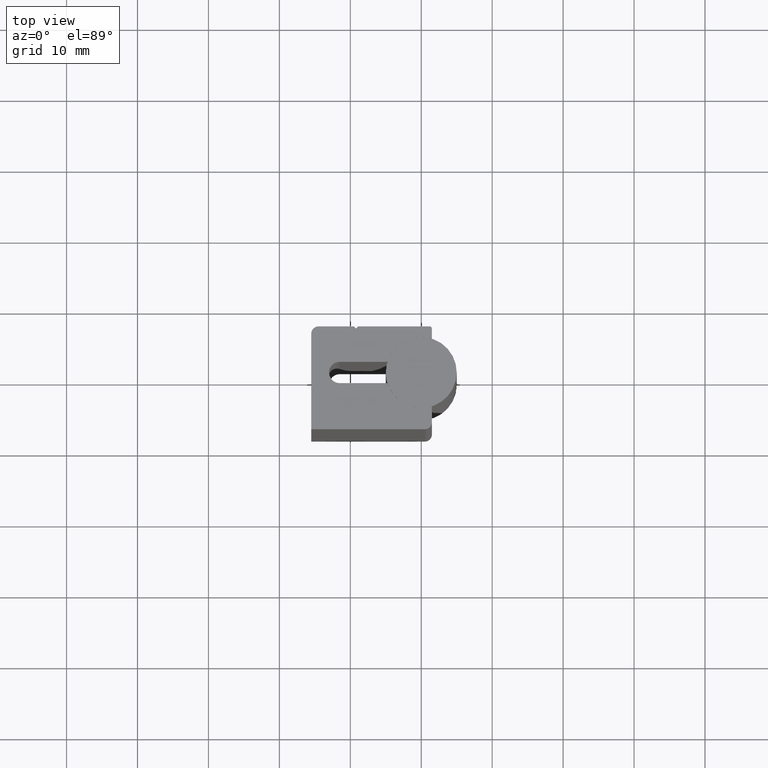
[diagram: clean part render]
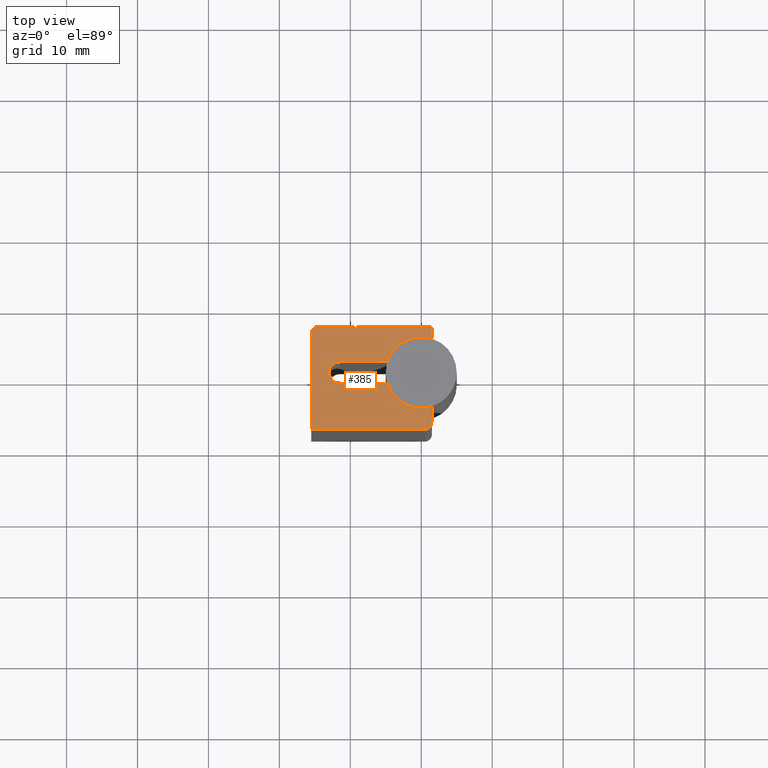
[diagram: same view with one face highlighted and labeled with its STEP entity id]
A machine part, top view. The second image highlights one B-rep face of the part: STEP entity #385.
In plain terms, the highlighted planar face has unit normal (0, 0, 1).
Its self-contained STEP definition (entity closure, byte-faithful):
#32=CIRCLE('',#442,1.);
#34=CIRCLE('',#449,0.3);
#36=CIRCLE('',#453,5.);
#38=CIRCLE('',#457,1.49999999999616);
#40=CIRCLE('',#461,5.00000000000274);
#42=CIRCLE('',#465,1.);
#68=FACE_OUTER_BOUND('',#89,.T.);
#89=EDGE_LOOP('',(#317,#318,#319,#320,#321,#322,#323,#324,#325,#326,#327,
#328,#329,#330,#331,#332));
#96=LINE('',#605,#133);
#99=LINE('',#611,#136);
#103=LINE('',#623,#140);
#106=LINE('',#629,#143);
#109=LINE('',#635,#146);
#112=LINE('',#641,#149);
#116=LINE('',#653,#153);
#120=LINE('',#665,#157);
#124=LINE('',#677,#161);
#128=LINE('',#689,#165);
#133=VECTOR('',#485,10.);
#136=VECTOR('',#490,10.);
#140=VECTOR('',#502,10.);
#143=VECTOR('',#507,10.);
#146=VECTOR('',#512,10.);
#149=VECTOR('',#517,10.);
#153=VECTOR('',#529,10.);
#157=VECTOR('',#541,10.);
#161=VECTOR('',#553,10.);
#165=VECTOR('',#565,10.);
#170=VERTEX_POINT('',#602);
#171=VERTEX_POINT('',#604);
#173=VERTEX_POINT('',#610);
#175=VERTEX_POINT('',#616);
#177=VERTEX_POINT('',#622);
#179=VERTEX_POINT('',#628);
#181=VERTEX_POINT('',#634);
#183=VERTEX_POINT('',#640);
#185=VERTEX_POINT('',#646);
#187=VERTEX_POINT('',#652);
#189=VERTEX_POINT('',#658);
#191=VERTEX_POINT('',#664);
#193=VERTEX_POINT('',#670);
#195=VERTEX_POINT('',#676);
#197=VERTEX_POINT('',#682);
#199=VERTEX_POINT('',#688);
#204=EDGE_CURVE('',#171,#170,#96,.T.);
#207=EDGE_CURVE('',#173,#171,#99,.T.);
#210=EDGE_CURVE('',#175,#173,#32,.T.);
#213=EDGE_CURVE('',#177,#175,#103,.T.);
#216=EDGE_CURVE('',#179,#177,#106,.T.);
#219=EDGE_CURVE('',#181,#179,#109,.T.);
#222=EDGE_CURVE('',#183,#181,#112,.T.);
#225=EDGE_CURVE('',#185,#183,#34,.T.);
#228=EDGE_CURVE('',#187,#185,#116,.T.);
#231=EDGE_CURVE('',#189,#187,#36,.T.);
#234=EDGE_CURVE('',#191,#189,#120,.T.);
#237=EDGE_CURVE('',#193,#191,#38,.T.);
#240=EDGE_CURVE('',#195,#193,#124,.T.);
#243=EDGE_CURVE('',#197,#195,#40,.T.);
#246=EDGE_CURVE('',#199,#197,#128,.T.);
#249=EDGE_CURVE('',#170,#199,#42,.T.);
#317=ORIENTED_EDGE('',*,*,#249,.T.);
#318=ORIENTED_EDGE('',*,*,#246,.T.);
#319=ORIENTED_EDGE('',*,*,#243,.T.);
#320=ORIENTED_EDGE('',*,*,#240,.T.);
#321=ORIENTED_EDGE('',*,*,#237,.T.);
#322=ORIENTED_EDGE('',*,*,#234,.T.);
#323=ORIENTED_EDGE('',*,*,#231,.T.);
#324=ORIENTED_EDGE('',*,*,#228,.T.);
#325=ORIENTED_EDGE('',*,*,#225,.T.);
#326=ORIENTED_EDGE('',*,*,#222,.T.);
#327=ORIENTED_EDGE('',*,*,#219,.T.);
#328=ORIENTED_EDGE('',*,*,#216,.T.);
#329=ORIENTED_EDGE('',*,*,#213,.T.);
#330=ORIENTED_EDGE('',*,*,#210,.T.);
#331=ORIENTED_EDGE('',*,*,#207,.T.);
#332=ORIENTED_EDGE('',*,*,#204,.T.);
#365=PLANE('',#466);
#385=ADVANCED_FACE('',(#68),#365,.T.);
#442=AXIS2_PLACEMENT_3D('',#617,#496,#497);
#449=AXIS2_PLACEMENT_3D('',#647,#523,#524);
#453=AXIS2_PLACEMENT_3D('',#659,#535,#536);
#457=AXIS2_PLACEMENT_3D('',#671,#547,#548);
#461=AXIS2_PLACEMENT_3D('',#683,#559,#560);
#465=AXIS2_PLACEMENT_3D('',#693,#571,#572);
#466=AXIS2_PLACEMENT_3D('',#694,#573,#574);
#485=DIRECTION('',(1.,6.93889390390723E-17,0.));
#490=DIRECTION('',(4.93432455388958E-16,-1.,0.));
#496=DIRECTION('center_axis',(0.,0.,1.));
#497=DIRECTION('ref_axis',(0.,1.,0.));
#502=DIRECTION('',(-1.,2.22044604925309E-16,0.));
#507=DIRECTION('',(-0.707106781186851,0.707106781186244,0.));
#512=DIRECTION('',(-0.707106781186244,-0.707106781186851,0.));
#517=DIRECTION('',(-1.,-1.09923071745126E-16,0.));
#523=DIRECTION('center_axis',(0.,0.,1.));
#524=DIRECTION('ref_axis',(1.,0.,0.));
#529=DIRECTION('',(-3.88107363932674E-16,1.,0.));
#535=DIRECTION('center_axis',(0.,0.,-1.));
#536=DIRECTION('ref_axis',(-0.3,-0.953939201416946,0.));
#541=DIRECTION('',(1.,0.,0.));
#547=DIRECTION('center_axis',(0.,0.,-1.));
#548=DIRECTION('ref_axis',(0.,-1.,0.));
#553=DIRECTION('',(-1.,1.6495882292902E-16,0.));
#559=DIRECTION('center_axis',(0.,0.,-1.));
#560=DIRECTION('ref_axis',(0.953939201417185,0.299999999999239,0.));
#565=DIRECTION('',(-2.48894999998454E-16,1.,0.));
#571=DIRECTION('center_axis',(0.,0.,1.));
#572=DIRECTION('ref_axis',(0.,-1.,0.));
#573=DIRECTION('center_axis',(0.,0.,1.));
#574=DIRECTION('ref_axis',(1.,0.,0.));
#602=CARTESIAN_POINT('',(0.500000000000001,-8.00000000000038,100.));
#604=CARTESIAN_POINT('',(-15.5,-8.00000000000038,100.));
#605=CARTESIAN_POINT('',(-15.5,-8.00000000000038,100.));
#610=CARTESIAN_POINT('',(-15.5,5.49999999999962,100.));
#611=CARTESIAN_POINT('',(-15.5,5.49999999999962,100.));
#616=CARTESIAN_POINT('',(-14.5,6.49999999999962,100.));
#617=CARTESIAN_POINT('Origin',(-14.5,5.49999999999962,100.));
#622=CARTESIAN_POINT('',(-9.50000000000626,6.49999999999962,100.));
#623=CARTESIAN_POINT('',(-9.50000000000626,6.49999999999962,100.));
#628=CARTESIAN_POINT('',(-9.20000000000007,6.1999999999937,100.));
#629=CARTESIAN_POINT('',(-9.20000000000007,6.1999999999937,100.));
#634=CARTESIAN_POINT('',(-8.89999999999441,6.49999999999962,100.));
#635=CARTESIAN_POINT('',(-8.89999999999441,6.49999999999962,100.));
#640=CARTESIAN_POINT('',(1.2,6.49999999999962,100.));
#641=CARTESIAN_POINT('',(1.2,6.49999999999962,100.));
#646=CARTESIAN_POINT('',(1.5,6.19999999999962,100.));
#647=CARTESIAN_POINT('Origin',(1.2,6.19999999999962,100.));
#652=CARTESIAN_POINT('',(1.5,4.76969600708473,100.));
#653=CARTESIAN_POINT('',(1.5,4.76969600708473,100.));
#658=CARTESIAN_POINT('',(-4.76969600708621,1.49999999999531,100.));
#659=CARTESIAN_POINT('Origin',(0.,0.,100.));
#664=CARTESIAN_POINT('',(-11.5,1.49999999999531,100.));
#665=CARTESIAN_POINT('',(-11.5,1.49999999999531,100.));
#670=CARTESIAN_POINT('',(-11.5,-1.49999999999701,100.));
#671=CARTESIAN_POINT('Origin',(-11.5,-8.54039061692902E-13,100.));
#676=CARTESIAN_POINT('',(-4.76969600708854,-1.49999999999701,100.));
#677=CARTESIAN_POINT('',(-4.76969600708854,-1.49999999999701,100.));
#682=CARTESIAN_POINT('',(1.5,-4.7696960070876,100.));
#683=CARTESIAN_POINT('Origin',(0.,0.,100.));
#688=CARTESIAN_POINT('',(1.5,-7.00000000000038,100.));
#689=CARTESIAN_POINT('',(1.5,-7.00000000000038,100.));
#693=CARTESIAN_POINT('Origin',(0.500000000000001,-7.00000000000038,100.));
#694=CARTESIAN_POINT('Origin',(-7.74859094207134,-0.572311457513663,100.));